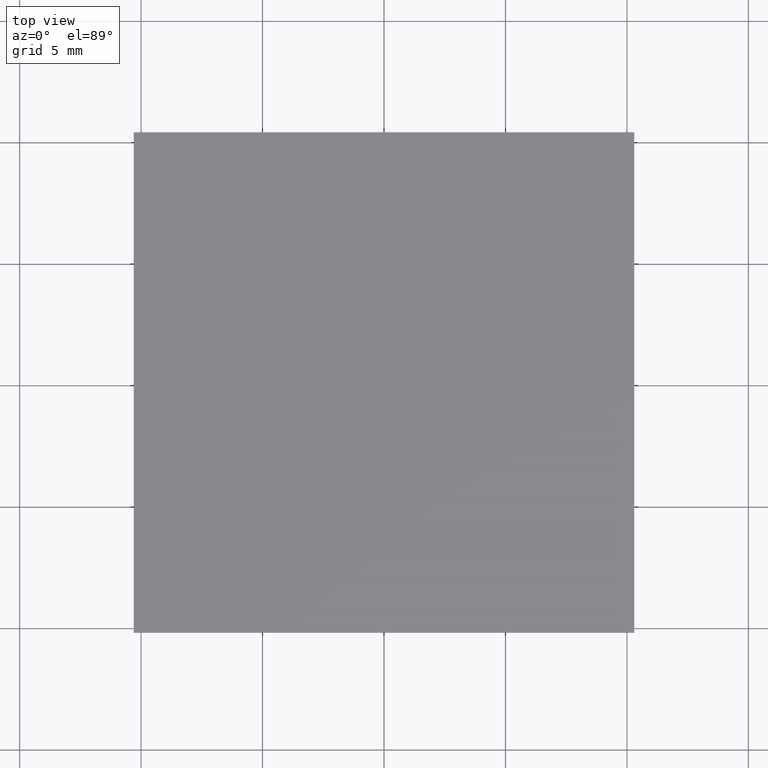
[diagram: clean part render]
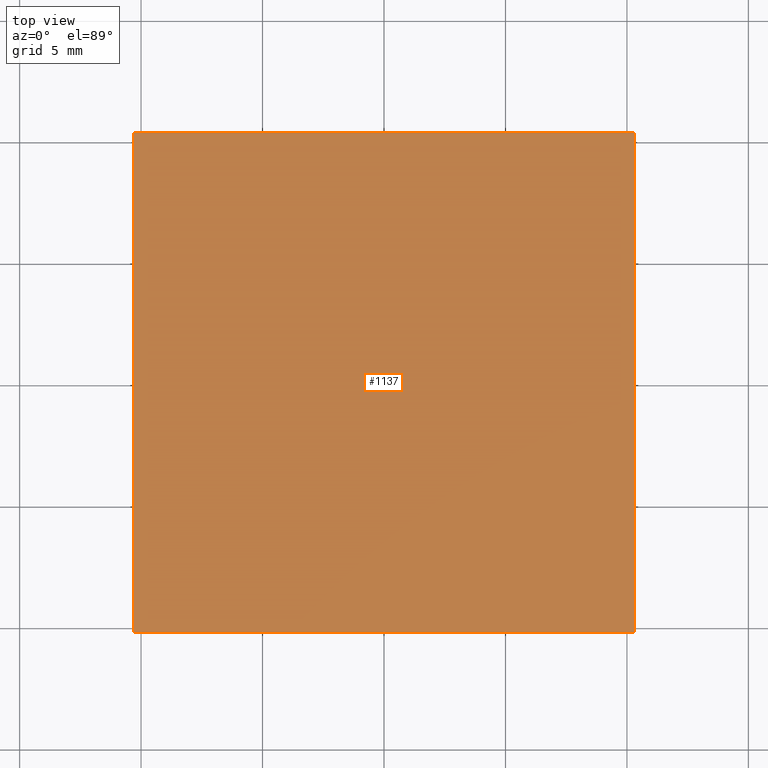
[diagram: same view with one face highlighted and labeled with its STEP entity id]
A machine part, top view. The second image highlights one B-rep face of the part: STEP entity #1137.
In plain terms, the highlighted face is a freeform B-spline surface patch.
Its self-contained STEP definition (entity closure, byte-faithful):
#1102=CARTESIAN_POINT('',(-11.328970153451269,-11.328970153451269,7.600000000000000));
#1103=CARTESIAN_POINT('',(11.328970521807969,-11.328970153451269,7.600000000000000));
#1104=CARTESIAN_POINT('',(-11.328970153451269,11.328970521807969,7.600000000000000));
#1105=CARTESIAN_POINT('',(11.328970521807969,11.328970521807969,7.600000000000000));
#1106=B_SPLINE_SURFACE_WITH_KNOTS('',1,1,((#1102,#1104),(#1103,#1105)),.UNSPECIFIED.,.F.,.F.,.U.,(2,2),(2,2),(0.0,22.657940675259240),(0.0,22.657940675259240),.UNSPECIFIED.);
#1107=CARTESIAN_POINT('',(10.300000000000001,10.300000000000001,7.600000000000000));
#1108=VERTEX_POINT('',#1107);
#1109=CARTESIAN_POINT('',(10.300000000000001,-10.300000000000001,7.600000000000000));
#1110=VERTEX_POINT('',#1109);
#1111=CARTESIAN_POINT('',(10.300000000000001,10.300000000000001,7.600000000000000));
#1112=CARTESIAN_POINT('',(10.300000000000001,-10.300000000000001,7.600000000000000));
#1113=QUASI_UNIFORM_CURVE('',1,(#1111,#1112),.UNSPECIFIED.,.F.,.U.);
#1114=EDGE_CURVE('',#1108,#1110,#1113,.T.);
#1115=ORIENTED_EDGE('',*,*,#1114,.F.);
#1116=CARTESIAN_POINT('',(-10.300000000000001,10.300000000000001,7.600000000000000));
#1117=VERTEX_POINT('',#1116);
#1118=CARTESIAN_POINT('',(-10.300000000000001,10.300000000000001,7.600000000000000));
#1119=CARTESIAN_POINT('',(10.300000000000001,10.300000000000001,7.600000000000000));
#1120=QUASI_UNIFORM_CURVE('',1,(#1118,#1119),.UNSPECIFIED.,.F.,.U.);
#1121=EDGE_CURVE('',#1117,#1108,#1120,.T.);
#1122=ORIENTED_EDGE('',*,*,#1121,.F.);
#1123=CARTESIAN_POINT('',(-10.300000000000001,-10.300000000000001,7.600000000000000));
#1124=VERTEX_POINT('',#1123);
#1125=CARTESIAN_POINT('',(-10.300000000000001,-10.300000000000001,7.600000000000000));
#1126=CARTESIAN_POINT('',(-10.300000000000001,10.300000000000001,7.600000000000000));
#1127=QUASI_UNIFORM_CURVE('',1,(#1125,#1126),.UNSPECIFIED.,.F.,.U.);
#1128=EDGE_CURVE('',#1124,#1117,#1127,.T.);
#1129=ORIENTED_EDGE('',*,*,#1128,.F.);
#1130=CARTESIAN_POINT('',(10.300000000000001,-10.300000000000001,7.600000000000000));
#1131=CARTESIAN_POINT('',(-10.300000000000001,-10.300000000000001,7.600000000000000));
#1132=QUASI_UNIFORM_CURVE('',1,(#1130,#1131),.UNSPECIFIED.,.F.,.U.);
#1133=EDGE_CURVE('',#1110,#1124,#1132,.T.);
#1134=ORIENTED_EDGE('',*,*,#1133,.F.);
#1135=EDGE_LOOP('',(#1115,#1122,#1129,#1134));
#1136=FACE_OUTER_BOUND('',#1135,.T.);
#1137=ADVANCED_FACE('',(#1136),#1106,.T.);